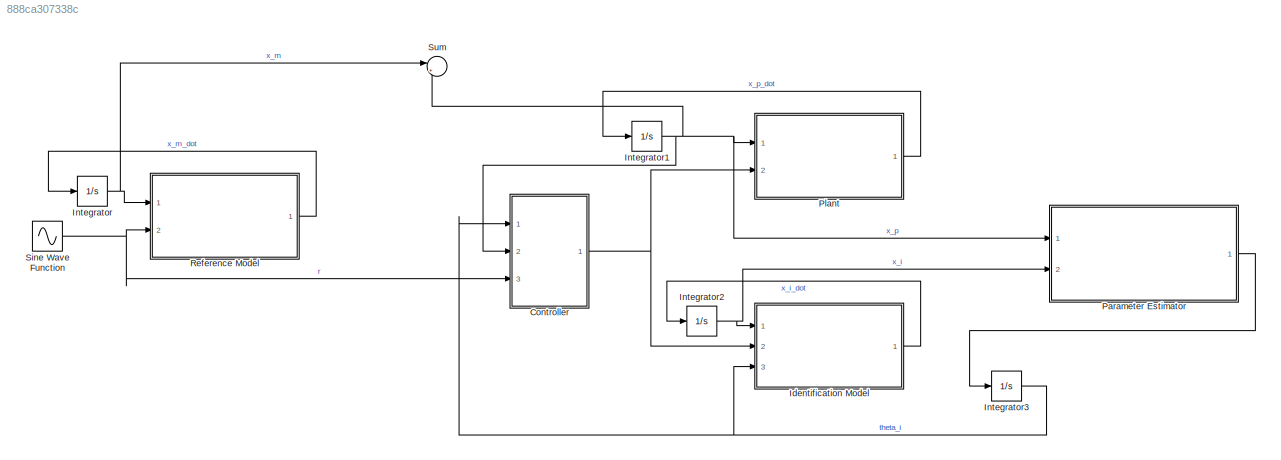
MODEL slx_888ca307338c
KIND model
CONFIG AbsTol = auto
CONFIG EnableMultiTasking = off
CONFIG FixedStep = 0.005
CONFIG MaxStep = auto
CONFIG MinStep = auto
CONFIG RelTol = 1e-3
CONFIG SampleTimeConstraint = Unconstrained
CONFIG Solver = FixedStepAuto
CONFIG SolverName = FixedStepAuto
CONFIG StartTime = 0.0
CONFIG StopTime = 100
WORKSPACE source: mxarray member
WORKSPACE P = [1.1 0.1 0.1 0.1]
WORKSPACE gamma: Simulink.Parameter (value not decoded)
WORKSPACE theta_i_init: Simulink.Parameter (value not decoded)
WORKSPACE theta_m: Simulink.Parameter (value not decoded)
WORKSPACE theta_p: Simulink.Parameter (value not decoded)
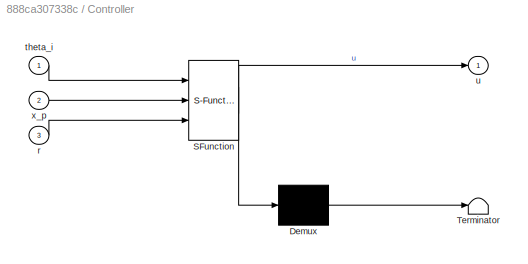
BLOCK [SubSystem] Controller
  ErrorFcn = Stateflow.Translate.translate
  PermitHierarchicalResolution = ExplicitOnly
  Ports = [3, 1]
  RequestExecContextInheritance = off
  SFBlockType = MATLAB Function
  TreatAsAtomicUnit = on
BLOCK [Demux] Controller/ Demux 
  Outputs = 1
  Ports = [1, 1]
BLOCK [S-Function] Controller/ SFunction 
  EnableBusSupport = on
  FunctionName = sf_sfun
  Parameters = theta_m
  PortCounts = [3 2]
  Ports = [3, 2]
  SFcnIsStateOwnerBlock = off
  SFunctionDeploymentMode = off
  Tag = Stateflow S-Function 4
BLOCK [Terminator] Controller/ Terminator 
BLOCK [Inport] Controller/r
  IconDisplay = Port number
  Port = 3
BLOCK [Inport] Controller/theta_i
  IconDisplay = Port number
BLOCK [Outport] Controller/u
  IconDisplay = Port number
BLOCK [Inport] Controller/x_p
  IconDisplay = Port number
  Port = 2
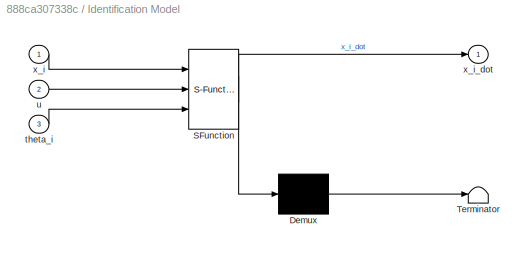
BLOCK [SubSystem] Identification Model
  ErrorFcn = Stateflow.Translate.translate
  PermitHierarchicalResolution = ExplicitOnly
  Ports = [3, 1]
  RequestExecContextInheritance = off
  SFBlockType = MATLAB Function
  TreatAsAtomicUnit = on
BLOCK [Demux] Identification Model/ Demux 
  Outputs = 1
  Ports = [1, 1]
BLOCK [S-Function] Identification Model/ SFunction 
  EnableBusSupport = on
  FunctionName = sf_sfun
  Parameters = theta_m
  PortCounts = [3 2]
  Ports = [3, 2]
  SFcnIsStateOwnerBlock = off
  SFunctionDeploymentMode = off
  Tag = Stateflow S-Function 3
BLOCK [Terminator] Identification Model/ Terminator 
BLOCK [Inport] Identification Model/theta_i
  IconDisplay = Port number
  Port = 3
BLOCK [Inport] Identification Model/u
  IconDisplay = Port number
  Port = 2
BLOCK [Inport] Identification Model/x_i
  IconDisplay = Port number
BLOCK [Outport] Identification Model/x_i_dot
  IconDisplay = Port number
BLOCK [Integrator] Integrator
  InitialCondition = zeros(size(theta_m))
  Ports = [1, 1]
BLOCK [Integrator] Integrator1
  InitialCondition = zeros(size(theta_p))
  Ports = [1, 1]
BLOCK [Integrator] Integrator2
  InitialCondition = zeros(size(theta_i_init))
  Ports = [1, 1]
BLOCK [Integrator] Integrator3
  InitialCondition = theta_i_init
  Ports = [1, 1]
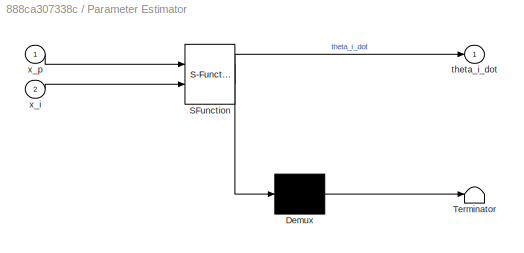
BLOCK [SubSystem] Parameter Estimator
  ErrorFcn = Stateflow.Translate.translate
  PermitHierarchicalResolution = ExplicitOnly
  Ports = [2, 1]
  RequestExecContextInheritance = off
  SFBlockType = MATLAB Function
  TreatAsAtomicUnit = on
BLOCK [Demux] Parameter Estimator/ Demux 
  Outputs = 1
  Ports = [1, 1]
BLOCK [S-Function] Parameter Estimator/ SFunction 
  EnableBusSupport = on
  FunctionName = sf_sfun
  Parameters = P,gamma
  PortCounts = [2 2]
  Ports = [2, 2]
  SFcnIsStateOwnerBlock = off
  SFunctionDeploymentMode = off
  Tag = Stateflow S-Function 5
BLOCK [Terminator] Parameter Estimator/ Terminator 
BLOCK [Outport] Parameter Estimator/theta_i_dot
  IconDisplay = Port number
BLOCK [Inport] Parameter Estimator/x_i
  IconDisplay = Port number
  Port = 2
BLOCK [Inport] Parameter Estimator/x_p
  IconDisplay = Port number
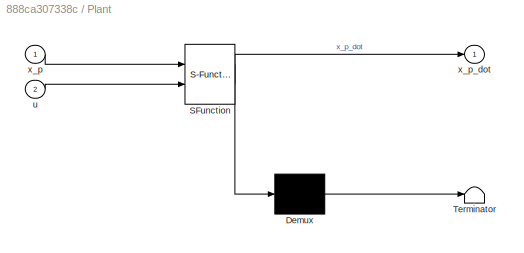
BLOCK [SubSystem] Plant
  ErrorFcn = Stateflow.Translate.translate
  PermitHierarchicalResolution = ExplicitOnly
  Ports = [2, 1]
  RequestExecContextInheritance = off
  SFBlockType = MATLAB Function
  TreatAsAtomicUnit = on
BLOCK [Demux] Plant/ Demux 
  Outputs = 1
  Ports = [1, 1]
BLOCK [S-Function] Plant/ SFunction 
  EnableBusSupport = on
  FunctionName = sf_sfun
  Parameters = theta_p
  PortCounts = [2 2]
  Ports = [2, 2]
  SFcnIsStateOwnerBlock = off
  SFunctionDeploymentMode = off
  Tag = Stateflow S-Function 1
BLOCK [Terminator] Plant/ Terminator 
BLOCK [Inport] Plant/u
  IconDisplay = Port number
  Port = 2
BLOCK [Inport] Plant/x_p
  IconDisplay = Port number
BLOCK [Outport] Plant/x_p_dot
  IconDisplay = Port number
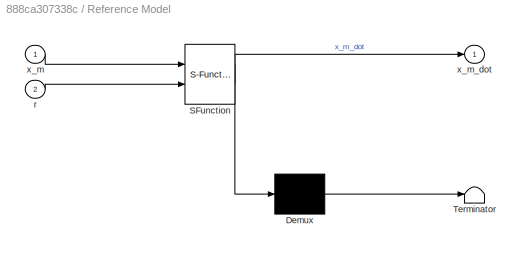
BLOCK [SubSystem] Reference Model
  ErrorFcn = Stateflow.Translate.translate
  PermitHierarchicalResolution = ExplicitOnly
  Ports = [2, 1]
  RequestExecContextInheritance = off
  SFBlockType = MATLAB Function
  TreatAsAtomicUnit = on
BLOCK [Demux] Reference Model/ Demux 
  Outputs = 1
  Ports = [1, 1]
BLOCK [S-Function] Reference Model/ SFunction 
  EnableBusSupport = on
  FunctionName = sf_sfun
  Parameters = theta_m
  PortCounts = [2 2]
  Ports = [2, 2]
  SFcnIsStateOwnerBlock = off
  SFunctionDeploymentMode = off
  Tag = Stateflow S-Function 2
BLOCK [Terminator] Reference Model/ Terminator 
BLOCK [Inport] Reference Model/r
  IconDisplay = Port number
  Port = 2
BLOCK [Inport] Reference Model/x_m
  IconDisplay = Port number
BLOCK [Outport] Reference Model/x_m_dot
  IconDisplay = Port number
BLOCK [Sin] Sine Wave Function
  Amplitude = 5
  Frequency = 0.2*pi
  Ports = [0, 1]
  SampleTime = 0
BLOCK [Sum] Sum
  IconShape = round
  InputSameDT = off
  Inputs = |+-
  OutDataTypeStr = Inherit: Inherit via internal rule
  Ports = [2, 1]
  SaturateOnIntegerOverflow = off
NET Controller:1 -> Identification Model:2, Plant:2
LINE Identification Model:1 -> Integrator2:1
NET Integrator1:1 -> Controller:2, Parameter Estimator:1, Plant:1, Sum:2
NET Integrator2:1 -> Identification Model:1, Parameter Estimator:2
NET Integrator3:1 -> Controller:1, Identification Model:3
NET Integrator:1 -> Reference Model:1, Sum:1
LINE Parameter Estimator:1 -> Integrator3:1
LINE Plant:1 -> Integrator1:1
LINE Reference Model:1 -> Integrator:1
NET Sine Wave Function:1 -> Controller:3, Reference Model:2
note: NET lines group one-source signal fan-out (src -> all destinations, sorted); 1:1 wires keep LINE
CHART Plant states=1 transitions=1
  STATE_LABEL 'eML_blk_kernel()'
  STATE_LABEL 'SCRIPT:\nfunction x_p_dot = plant(x_p, u, theta_p)\nA_p = companion(theta_p);\nb = zeros(size(x_p));\nb(end) = 1;\nx_p_dot = A_p * x_p + b*u;\n\n\nfunction A_m = companion(theta)\ntheta_ = [1; -rot90(theta, 2)];\nA_m = rot90(compan(theta_), 2);'
CHART Reference Model states=1 transitions=1
  STATE_LABEL 'eML_blk_kernel()'
  STATE_LABEL 'SCRIPT:\nfunction x_m_dot = reference(x_m, r, theta_m)\nA_m = companion(theta_m);\nb = zeros(size(x_m));\nb(end) = 1;\nx_m_dot = A_m * x_m + b*r;\n\n\nfunction A_m = companion(theta)\ntheta_ = [1; -rot90(theta, 2)];\nA_m = rot90(compan(theta_), 2);'
CHART Identification Model states=1 transitions=1
  STATE_LABEL 'eML_blk_kernel()'
  STATE_LABEL 'SCRIPT:\nfunction x_i_dot = ident(x_i, u, theta_i, theta_m)\nA_i = companion(theta_i);\nA_m = companion(theta_m);\nb = zeros(size(x_i));\nb(end) = 1;\nx_i_dot = A_m * x_i + (A_i - A_m) * x_i + b*u;\n\n\nfunction A_m = companion(theta)\ntheta_ = [1; -rot90(theta, 2)];\nA_m = rot90(compan(theta_), 2);'
CHART Controller states=1 transitions=1
  STATE_LABEL 'eML_blk_kernel()'
  STATE_LABEL "SCRIPT:\nfunction u = controller(theta_i, x_p, r, theta_m)\nk = theta_i - theta_m;\nu = -k' * x_p + r;"
CHART Parameter Estimator states=1 transitions=1
  STATE_LABEL 'eML_blk_kernel()'
  STATE_LABEL "SCRIPT:\nfunction theta_i_dot = estimator(x_p, x_i, P, gamma)\ne_i = x_i - x_p;\nb = zeros(size(x_p));\nb(end) = 1;\ntheta_i_dot = -gamma * e_i' * P * b * x_p;"
